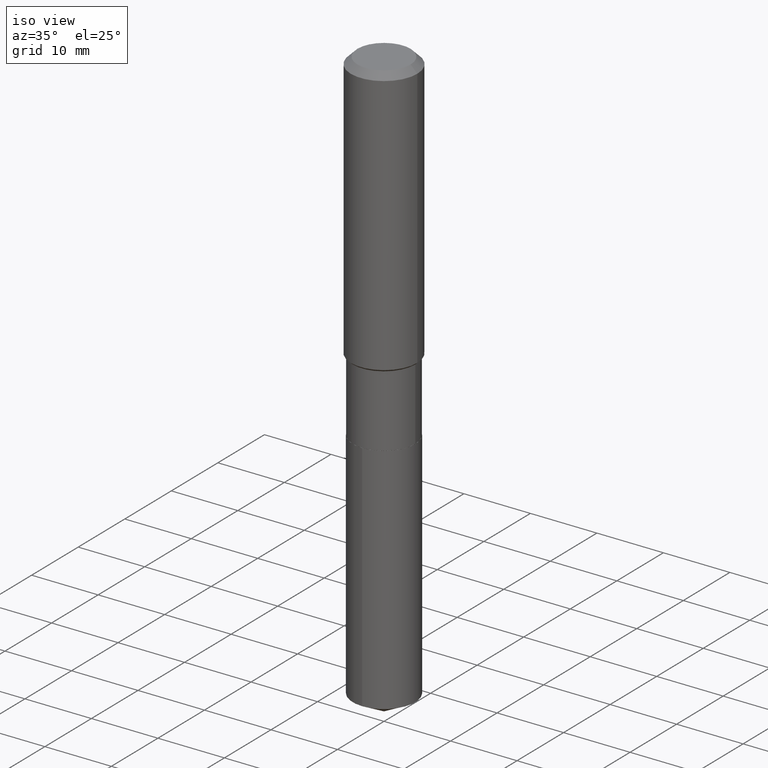
[diagram: clean part render]
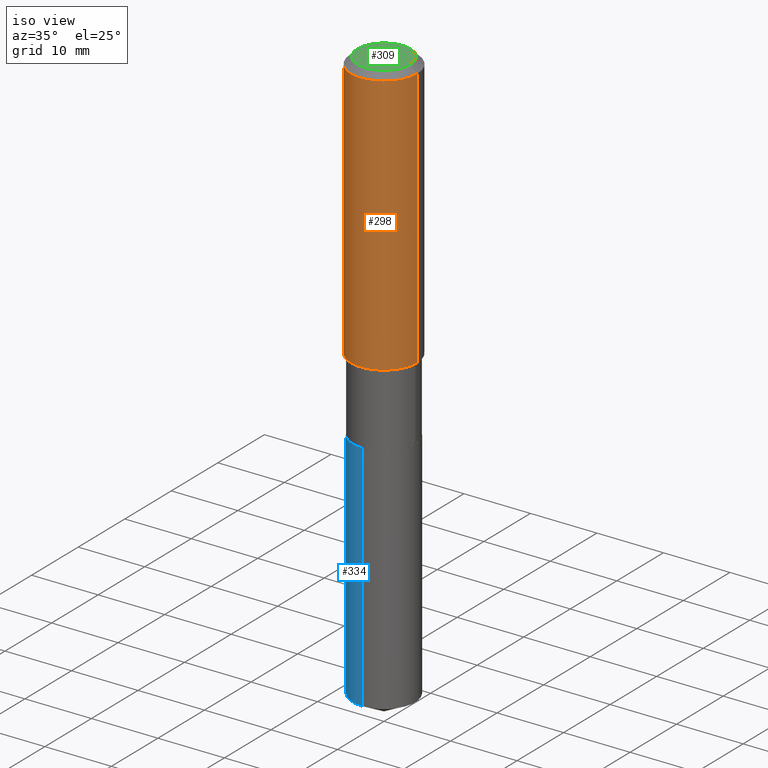
[diagram: same view with three faces highlighted in distinct colors, each labeled with its STEP entity id]
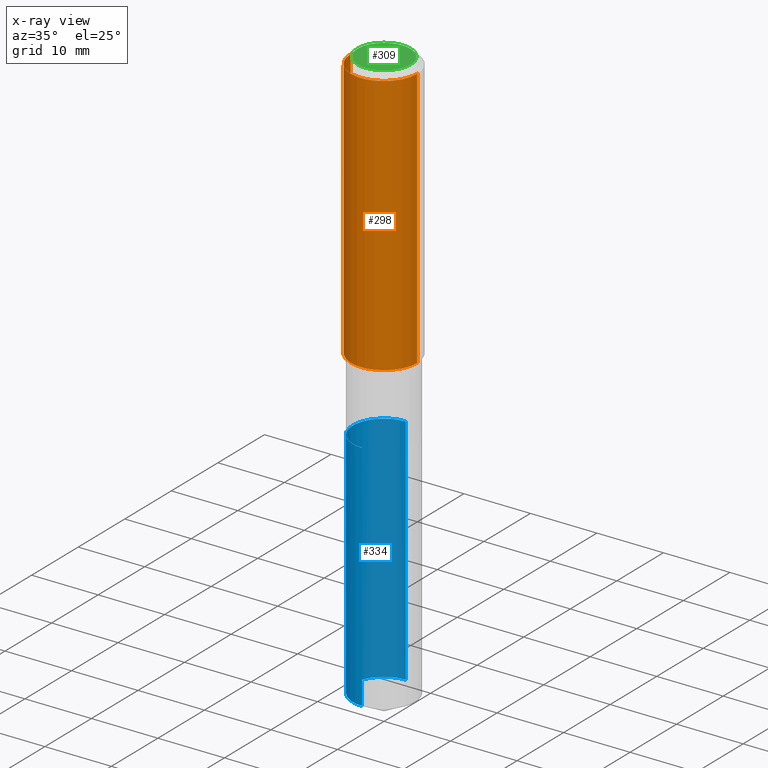
[diagram: x-ray of the same camera — body ghosted, the three highlighted faces saturated]
A machine part, iso view with three faces highlighted in distinct colors.
The next image is the same camera in x-ray (body ghosted, the three faces saturated) — at least one of them is partly hidden behind the body in this view.
Their STEP definitions:

[orange] entity #298 — the highlighted cylindrical surface (partial cylindrical patch) has radius 5 mm, axis along (-0, 0, 1).
#2 = EDGE_CURVE ( 'NONE', #419, #167, #350, .T. ) ;
#19 = ORIENTED_EDGE ( 'NONE', *, *, #2, .T. ) ;
#26 = CARTESIAN_POINT ( 'NONE',  ( -0.1968500000000002192, -4.139484324329237071E-15, -1.586199999999999610 ) ) ;
#48 = DIRECTION ( 'NONE',  ( 1.000000000000000000, -6.982962677686265922E-15, 0.000000000000000000 ) ) ;
#61 = CARTESIAN_POINT ( 'NONE',  ( 3.879002620370862839E-29, -5.538187699672996436E-15, -1.586199999999999610 ) ) ;
#86 = VECTOR ( 'NONE', #94, 39.37007874015748143 ) ;
#94 = DIRECTION ( 'NONE',  ( -2.445468806185136877E-29, 3.491481338843145188E-15, 1.000000000000000000 ) ) ;
#97 = DIRECTION ( 'NONE',  ( -2.445468806185136597E-29, 3.491481338843145583E-15, 1.000000000000000000 ) ) ;
#112 = VECTOR ( 'NONE', #268, 39.37007874015748143 ) ;
#113 = ORIENTED_EDGE ( 'NONE', *, *, #293, .F. ) ;
#126 = VERTEX_POINT ( 'NONE', #26 ) ;
#144 = EDGE_LOOP ( 'NONE', ( #113, #458, #19, #435 ) ) ;
#167 = VERTEX_POINT ( 'NONE', #266 ) ;
#168 = DIRECTION ( 'NONE',  ( 1.000000000000000000, -6.982962677686265922E-15, 0.000000000000000000 ) ) ;
#172 = EDGE_CURVE ( 'NONE', #480, #167, #431, .T. ) ;
#174 = CARTESIAN_POINT ( 'NONE',  ( 0.1968500000000002192, -6.912783902775538833E-15, -1.586199999999999610 ) ) ;
#209 = AXIS2_PLACEMENT_3D ( 'NONE', #61, #384, #168 ) ;
#211 = EDGE_CURVE ( 'NONE', #126, #419, #232, .T. ) ;
#232 = CIRCLE ( 'NONE', #209, 0.1968500000000002192 ) ;
#238 = CYLINDRICAL_SURFACE ( 'NONE', #304, 0.1968500000000001082 ) ;
#248 = AXIS2_PLACEMENT_3D ( 'NONE', #429, #394, #48 ) ;
#266 = CARTESIAN_POINT ( 'NONE',  ( 0.1968500000000000250, -1.512055823412797189E-15, -0.03937000000000029365 ) ) ;
#268 = DIRECTION ( 'NONE',  ( -2.445468806185136877E-29, 3.491481338843145188E-15, 1.000000000000000000 ) ) ;
#274 = CARTESIAN_POINT ( 'NONE',  ( 0.1968500000000001082, -1.374596203102542397E-15, 9.598753983154305062E-30 ) ) ;
#277 = CARTESIAN_POINT ( 'NONE',  ( -0.1968500000000001082, 1.398703375343757985E-15, -9.682923725166787881E-30 ) ) ;
#293 = EDGE_CURVE ( 'NONE', #126, #480, #428, .T. ) ;
#298 = ADVANCED_FACE ( 'NONE', ( #433 ), #238, .T. ) ;
#304 = AXIS2_PLACEMENT_3D ( 'NONE', #441, #97, #397 ) ;
#350 = LINE ( 'NONE', #274, #86 ) ;
#384 = DIRECTION ( 'NONE',  ( -2.445468806185136597E-29, 3.491481338843145583E-15, 1.000000000000000000 ) ) ;
#394 = DIRECTION ( 'NONE',  ( -2.445468806185136597E-29, 3.491481338843145583E-15, 1.000000000000000000 ) ) ;
#397 = DIRECTION ( 'NONE',  ( 1.000000000000000000, -6.982962677686266711E-15, 4.876176775795935793E-29 ) ) ;
#407 = CARTESIAN_POINT ( 'NONE',  ( -0.1968500000000000250, -1.439120284647867629E-15, -0.03937000000000029365 ) ) ;
#419 = VERTEX_POINT ( 'NONE', #174 ) ;
#428 = LINE ( 'NONE', #277, #112 ) ;
#429 = CARTESIAN_POINT ( 'NONE',  ( 9.627810689950954155E-31, -1.374596203102556547E-16, -0.03937000000000029365 ) ) ;
#431 = CIRCLE ( 'NONE', #248, 0.1968500000000000250 ) ;
#433 = FACE_OUTER_BOUND ( 'NONE', #144, .T. ) ;
#435 = ORIENTED_EDGE ( 'NONE', *, *, #172, .F. ) ;
#441 = CARTESIAN_POINT ( 'NONE',  ( 0.000000000000000000, 0.000000000000000000, 0.000000000000000000 ) ) ;
#458 = ORIENTED_EDGE ( 'NONE', *, *, #211, .T. ) ;
#480 = VERTEX_POINT ( 'NONE', #407 ) ;

[blue] entity #334 — the highlighted cylindrical surface (partial cylindrical patch) has radius 4.7003 mm, axis along (-0, 0, 1).
#15 = AXIS2_PLACEMENT_3D ( 'NONE', #271, #127, #437 ) ;
#16 = DIRECTION ( 'NONE',  ( -2.445569636956695496E-29, 3.491336943439341849E-15, 1.000000000000000000 ) ) ;
#27 = VERTEX_POINT ( 'NONE', #373 ) ;
#42 = CIRCLE ( 'NONE', #490, 0.1850499999999999923 ) ;
#50 = FACE_OUTER_BOUND ( 'NONE', #351, .T. ) ;
#123 = CYLINDRICAL_SURFACE ( 'NONE', #15, 0.1850499999999999923 ) ;
#124 = CARTESIAN_POINT ( 'NONE',  ( -1.292197243505793786E-15, -0.1850500000000070422, -2.023599999999999177 ) ) ;
#127 = DIRECTION ( 'NONE',  ( -2.445569636956695496E-29, 3.491336943439341849E-15, 1.000000000000000000 ) ) ;
#163 = LINE ( 'NONE', #124, #181 ) ;
#165 = VERTEX_POINT ( 'NONE', #439 ) ;
#166 = DIRECTION ( 'NONE',  ( -2.445569636956695215E-29, 3.491336943439341455E-15, 1.000000000000000000 ) ) ;
#176 = DIRECTION ( 'NONE',  ( -2.445569636956695215E-29, 3.491336943439341455E-15, 1.000000000000000000 ) ) ;
#181 = VECTOR ( 'NONE', #166, 39.37007874015748143 ) ;
#198 = CARTESIAN_POINT ( 'NONE',  ( 1.314859332524148564E-15, 0.1850499999999929146, -2.023600000000000065 ) ) ;
#202 = DIRECTION ( 'NONE',  ( -6.982962677686265133E-15, -1.000000000000000000, 2.952551195530141356E-15 ) ) ;
#207 = CARTESIAN_POINT ( 'NONE',  ( 4.948650676196241876E-29, -7.065361637282988500E-15, -2.023599999999999621 ) ) ;
#225 = EDGE_CURVE ( 'NONE', #27, #165, #42, .T. ) ;
#250 = CARTESIAN_POINT ( 'NONE',  ( 1.314859332524114446E-15, 0.1850499999999929146, -2.023600000000000065 ) ) ;
#260 = EDGE_CURVE ( 'NONE', #165, #396, #163, .T. ) ;
#271 = CARTESIAN_POINT ( 'NONE',  ( 4.948650676196241876E-29, -7.065361637282988500E-15, -2.023599999999999621 ) ) ;
#317 = ORIENTED_EDGE ( 'NONE', *, *, #225, .T. ) ;
#318 = CARTESIAN_POINT ( 'NONE',  ( 8.328200891436510860E-29, -1.189006519115920391E-14, -3.405507169671043499 ) ) ;
#319 = DIRECTION ( 'NONE',  ( -6.982962677686265133E-15, -1.000000000000000000, 2.952551195530141356E-15 ) ) ;
#330 = CIRCLE ( 'NONE', #444, 0.1850499999999999923 ) ;
#334 = ADVANCED_FACE ( 'NONE', ( #50 ), #123, .T. ) ;
#339 = VERTEX_POINT ( 'NONE', #198 ) ;
#351 = EDGE_LOOP ( 'NONE', ( #440, #317, #410, #382 ) ) ;
#369 = VECTOR ( 'NONE', #176, 39.37007874015748143 ) ;
#370 = LINE ( 'NONE', #250, #369 ) ;
#373 = CARTESIAN_POINT ( 'NONE',  ( 1.314859332524147972E-15, 0.1850499999999881129, -3.405507169671043943 ) ) ;
#382 = ORIENTED_EDGE ( 'NONE', *, *, #412, .F. ) ;
#396 = VERTEX_POINT ( 'NONE', #401 ) ;
#401 = CARTESIAN_POINT ( 'NONE',  ( -1.292197243505793786E-15, -0.1850500000000070422, -2.023599999999999177 ) ) ;
#410 = ORIENTED_EDGE ( 'NONE', *, *, #260, .T. ) ;
#412 = EDGE_CURVE ( 'NONE', #339, #396, #330, .T. ) ;
#437 = DIRECTION ( 'NONE',  ( -6.982962677686265133E-15, -1.000000000000000000, 2.952551195530141356E-15 ) ) ;
#439 = CARTESIAN_POINT ( 'NONE',  ( -1.292197243505760062E-15, -0.1850500000000118439, -3.405507169671043055 ) ) ;
#440 = ORIENTED_EDGE ( 'NONE', *, *, #445, .F. ) ;
#444 = AXIS2_PLACEMENT_3D ( 'NONE', #207, #16, #319 ) ;
#445 = EDGE_CURVE ( 'NONE', #27, #339, #370, .T. ) ;
#476 = DIRECTION ( 'NONE',  ( -2.445569636956695496E-29, 3.491336943439341849E-15, 1.000000000000000000 ) ) ;
#490 = AXIS2_PLACEMENT_3D ( 'NONE', #318, #476, #202 ) ;

[green] entity #309 — the highlighted planar face has unit normal (0, -0, -1).
#11 = VERTEX_POINT ( 'NONE', #296 ) ;
#53 = ORIENTED_EDGE ( 'NONE', *, *, #487, .T. ) ;
#65 = CARTESIAN_POINT ( 'NONE',  ( -9.427742298522567634E-47, 1.346031739168368355E-32, 3.855188123715870730E-18 ) ) ;
#71 = DIRECTION ( 'NONE',  ( -1.000000000000000000, 6.982962677686265922E-15, -4.876176775795935793E-29 ) ) ;
#88 = AXIS2_PLACEMENT_3D ( 'NONE', #292, #372, #71 ) ;
#91 = VERTEX_POINT ( 'NONE', #222 ) ;
#103 = CIRCLE ( 'NONE', #326, 0.1574800000000000089 ) ;
#154 = EDGE_LOOP ( 'NONE', ( #53, #270 ) ) ;
#182 = PLANE ( 'NONE',  #88 ) ;
#186 = FACE_OUTER_BOUND ( 'NONE', #154, .T. ) ;
#188 = AXIS2_PLACEMENT_3D ( 'NONE', #313, #381, #467 ) ;
#208 = DIRECTION ( 'NONE',  ( -2.445468806185136597E-29, 3.491481338843145583E-15, 1.000000000000000000 ) ) ;
#222 = CARTESIAN_POINT ( 'NONE',  ( -0.1574800000000000089, 1.168406772637159618E-15, 3.855188123707939751E-18 ) ) ;
#267 = CIRCLE ( 'NONE', #188, 0.1574800000000000089 ) ;
#270 = ORIENTED_EDGE ( 'NONE', *, *, #280, .T. ) ;
#280 = EDGE_CURVE ( 'NONE', #11, #91, #267, .T. ) ;
#288 = DIRECTION ( 'NONE',  ( 1.000000000000000000, -6.982962677686265922E-15, 4.876223630392693006E-29 ) ) ;
#292 = CARTESIAN_POINT ( 'NONE',  ( -4.713871149261283817E-47, 6.730158695841841775E-33, 1.927594061857935365E-18 ) ) ;
#296 = CARTESIAN_POINT ( 'NONE',  ( 0.1574800000000000089, -1.284169937930321189E-15, 3.855188123724205385E-18 ) ) ;
#309 = ADVANCED_FACE ( 'NONE', ( #186 ), #182, .F. ) ;
#313 = CARTESIAN_POINT ( 'NONE',  ( -9.427742298522567634E-47, 1.346031739168368355E-32, 3.855188123715870730E-18 ) ) ;
#326 = AXIS2_PLACEMENT_3D ( 'NONE', #65, #208, #288 ) ;
#372 = DIRECTION ( 'NONE',  ( 2.438088387897960049E-29, -3.491481338843145188E-15, -1.000000000000000000 ) ) ;
#381 = DIRECTION ( 'NONE',  ( -2.445468806185136597E-29, 3.491481338843145583E-15, 1.000000000000000000 ) ) ;
#467 = DIRECTION ( 'NONE',  ( 1.000000000000000000, -6.982962677686265922E-15, 4.876223630392693006E-29 ) ) ;
#487 = EDGE_CURVE ( 'NONE', #91, #11, #103, .T. ) ;